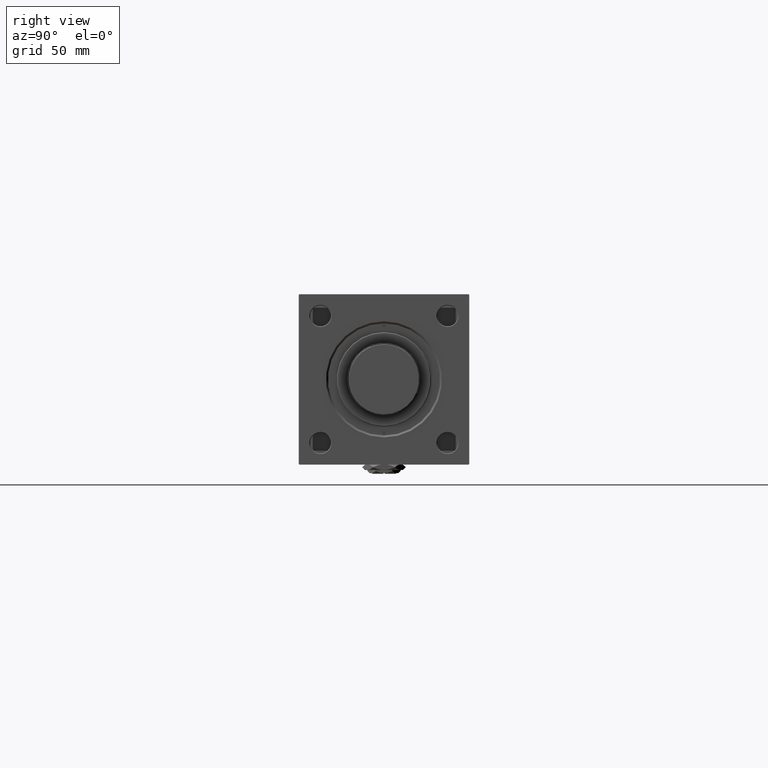
[diagram: clean part render]
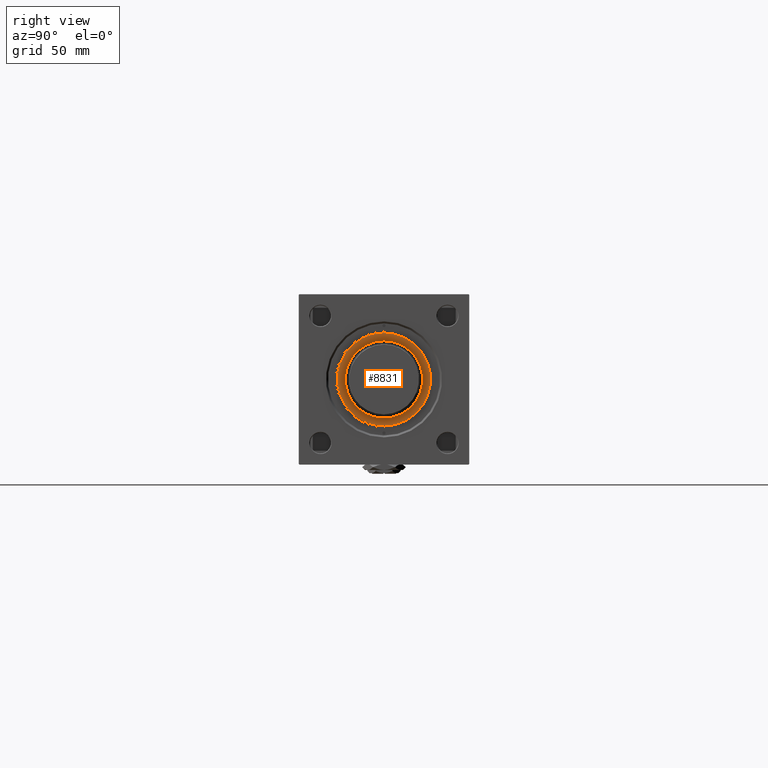
[diagram: same view with one face highlighted and labeled with its STEP entity id]
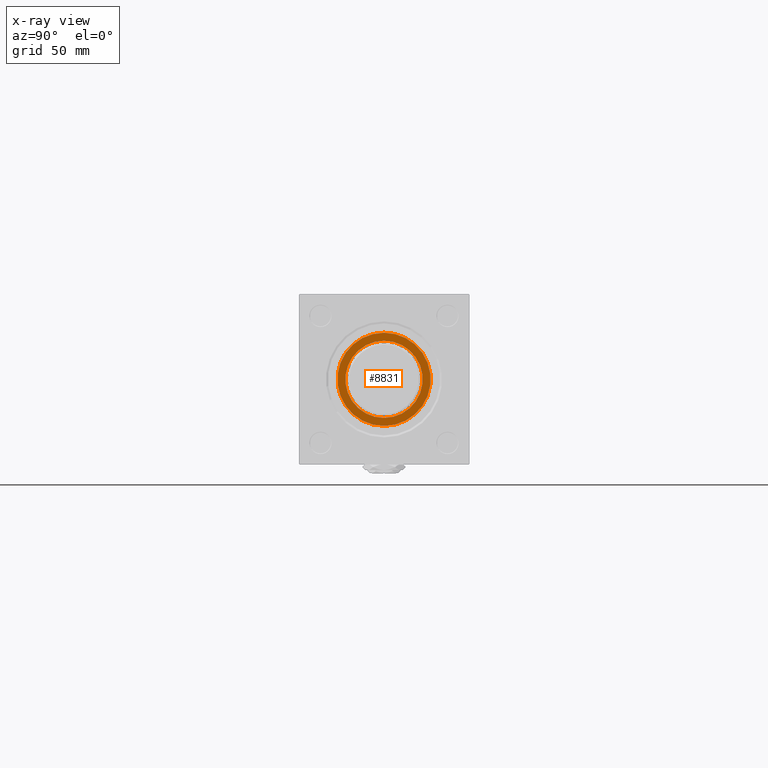
[diagram: x-ray of the same camera — body ghosted, the highlighted face saturated]
A machine part, right view. The second image highlights one B-rep face of the part: STEP entity #8831.
The next image is the same camera in x-ray: the body ghosted, the highlighted face saturated — about 0% of this face is hidden behind the body in this view.
In plain terms, the highlighted planar face has unit normal (1, 0, 0).
Its self-contained STEP definition (entity closure, byte-faithful):
#12 = DIRECTION ( 'NONE',  ( 1.000000000000000000, 0.000000000000000000, 0.000000000000000000 ) ) ;
#1026 = DIRECTION ( 'NONE',  ( 1.000000000000000000, 0.000000000000000000, 0.000000000000000000 ) ) ;
#1824 = CIRCLE ( 'NONE', #36965, 29.50000000000000355 ) ;
#3202 = CIRCLE ( 'NONE', #16108, 35.49999999999999289 ) ;
#5041 = AXIS2_PLACEMENT_3D ( 'NONE', #46640, #13645, #1026 ) ;
#5712 = PLANE ( 'NONE',  #35415 ) ;
#6250 = DIRECTION ( 'NONE',  ( 1.000000000000000000, 0.000000000000000000, -0.000000000000000000 ) ) ;
#6802 = AXIS2_PLACEMENT_3D ( 'NONE', #28484, #48865, #12 ) ;
#7606 = CARTESIAN_POINT ( 'NONE',  ( 35.49999999999999289, 4.378112306951787069E-15, 38.69999999999999574 ) ) ;
#8831 = ADVANCED_FACE ( 'NONE', ( #43028, #9998 ), #5712, .T. ) ;
#9998 = FACE_OUTER_BOUND ( 'NONE', #12940, .T. ) ;
#10174 = CIRCLE ( 'NONE', #5041, 29.50000000000000355 ) ;
#12940 = EDGE_LOOP ( 'NONE', ( #37527, #26651 ) ) ;
#13645 = DIRECTION ( 'NONE',  ( 0.000000000000000000, 0.000000000000000000, 1.000000000000000000 ) ) ;
#15220 = VERTEX_POINT ( 'NONE', #7606 ) ;
#16108 = AXIS2_PLACEMENT_3D ( 'NONE', #42998, #22060, #47005 ) ;
#16291 = VERTEX_POINT ( 'NONE', #16677 ) ;
#16345 = CARTESIAN_POINT ( 'NONE',  ( -35.49999999999999289, 0.000000000000000000, 38.69999999999999574 ) ) ;
#16677 = CARTESIAN_POINT ( 'NONE',  ( -29.50000000000000355, 3.612708057484692393E-15, 38.69999999999999574 ) ) ;
#18070 = DIRECTION ( 'NONE',  ( 0.000000000000000000, 0.000000000000000000, 1.000000000000000000 ) ) ;
#19002 = EDGE_CURVE ( 'NONE', #15220, #46315, #3202, .T. ) ;
#22060 = DIRECTION ( 'NONE',  ( 0.000000000000000000, 0.000000000000000000, 1.000000000000000000 ) ) ;
#24433 = DIRECTION ( 'NONE',  ( 0.000000000000000000, 0.000000000000000000, 1.000000000000000000 ) ) ;
#26284 = EDGE_CURVE ( 'NONE', #36099, #16291, #10174, .T. ) ;
#26651 = ORIENTED_EDGE ( 'NONE', *, *, #19002, .T. ) ;
#28050 = EDGE_CURVE ( 'NONE', #46315, #15220, #53100, .T. ) ;
#28484 = CARTESIAN_POINT ( 'NONE',  ( 0.000000000000000000, 0.000000000000000000, 38.69999999999999574 ) ) ;
#33385 = ORIENTED_EDGE ( 'NONE', *, *, #26284, .F. ) ;
#35346 = EDGE_CURVE ( 'NONE', #16291, #36099, #1824, .T. ) ;
#35415 = AXIS2_PLACEMENT_3D ( 'NONE', #38463, #18070, #6250 ) ;
#36099 = VERTEX_POINT ( 'NONE', #39338 ) ;
#36965 = AXIS2_PLACEMENT_3D ( 'NONE', #51013, #24433, #40268 ) ;
#37527 = ORIENTED_EDGE ( 'NONE', *, *, #28050, .T. ) ;
#38463 = CARTESIAN_POINT ( 'NONE',  ( 0.000000000000000000, 0.000000000000000000, 38.69999999999999574 ) ) ;
#39338 = CARTESIAN_POINT ( 'NONE',  ( 29.50000000000000355, 0.000000000000000000, 38.69999999999999574 ) ) ;
#40268 = DIRECTION ( 'NONE',  ( 1.000000000000000000, 0.000000000000000000, 0.000000000000000000 ) ) ;
#42998 = CARTESIAN_POINT ( 'NONE',  ( 0.000000000000000000, 0.000000000000000000, 38.69999999999999574 ) ) ;
#43028 = FACE_BOUND ( 'NONE', #46993, .T. ) ;
#46315 = VERTEX_POINT ( 'NONE', #16345 ) ;
#46640 = CARTESIAN_POINT ( 'NONE',  ( 0.000000000000000000, 0.000000000000000000, 38.69999999999999574 ) ) ;
#46993 = EDGE_LOOP ( 'NONE', ( #33385, #47154 ) ) ;
#47005 = DIRECTION ( 'NONE',  ( 1.000000000000000000, 0.000000000000000000, 0.000000000000000000 ) ) ;
#47154 = ORIENTED_EDGE ( 'NONE', *, *, #35346, .F. ) ;
#48865 = DIRECTION ( 'NONE',  ( 0.000000000000000000, 0.000000000000000000, 1.000000000000000000 ) ) ;
#51013 = CARTESIAN_POINT ( 'NONE',  ( 0.000000000000000000, 0.000000000000000000, 38.69999999999999574 ) ) ;
#53100 = CIRCLE ( 'NONE', #6802, 35.49999999999999289 ) ;